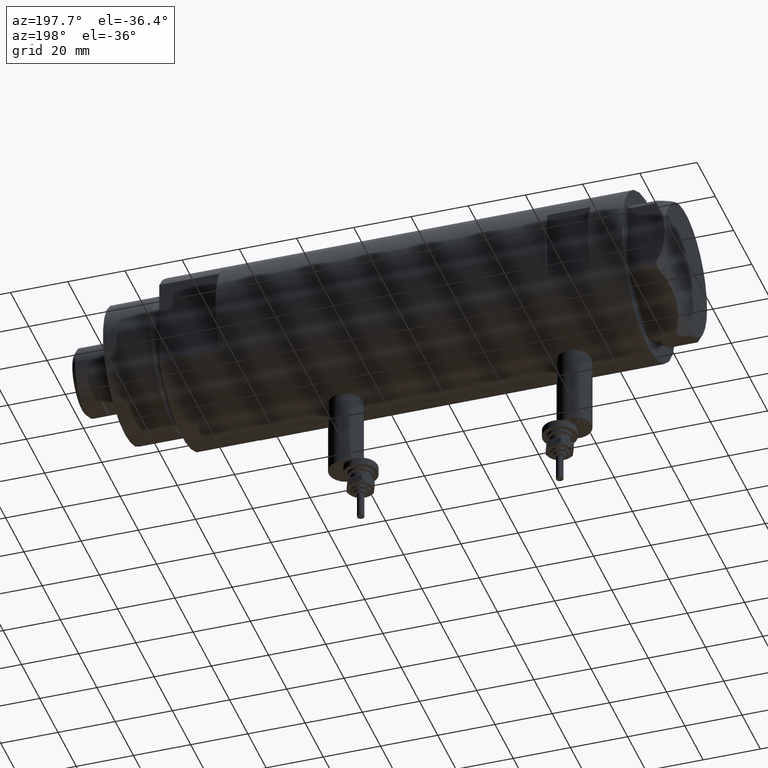
[diagram: clean part render]
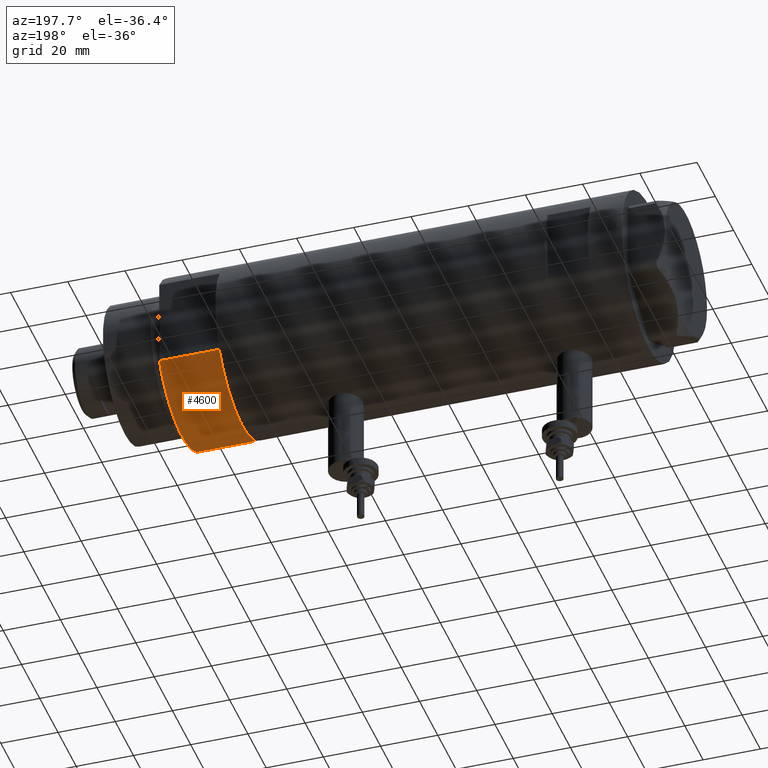
[diagram: same view with one face highlighted and labeled with its STEP entity id]
A machine part, auxiliary view. The second image highlights one B-rep face of the part: STEP entity #4600.
In plain terms, the highlighted cylindrical surface (partial cylindrical patch) has radius 29.5 mm, axis along (-1, -0, 0).
Its self-contained STEP definition (entity closure, byte-faithful):
#181 = VERTEX_POINT ( 'NONE', #2548 ) ;
#257 = FACE_OUTER_BOUND ( 'NONE', #3629, .T. ) ;
#272 = DIRECTION ( 'NONE',  ( 0.000000000000000000, 0.000000000000000000, 1.000000000000000000 ) ) ;
#664 = DIRECTION ( 'NONE',  ( 0.000000000000000000, 0.000000000000000000, 1.000000000000000000 ) ) ;
#689 = EDGE_CURVE ( 'NONE', #3703, #2813, #1892, .T. ) ;
#770 = VECTOR ( 'NONE', #1471, 1000.000000000000000 ) ;
#874 = EDGE_CURVE ( 'NONE', #5598, #181, #4890, .T. ) ;
#1239 = DIRECTION ( 'NONE',  ( 1.000000000000000000, 0.000000000000000000, 0.000000000000000000 ) ) ;
#1379 = ORIENTED_EDGE ( 'NONE', *, *, #1472, .F. ) ;
#1471 = DIRECTION ( 'NONE',  ( -0.000000000000000000, -0.000000000000000000, 1.000000000000000000 ) ) ;
#1472 = EDGE_CURVE ( 'NONE', #2813, #181, #3745, .T. ) ;
#1514 = ORIENTED_EDGE ( 'NONE', *, *, #4637, .T. ) ;
#1702 = CYLINDRICAL_SURFACE ( 'NONE', #4400, 29.50000000000000355 ) ;
#1724 = CARTESIAN_POINT ( 'NONE',  ( 0.000000000000000000, 0.000000000000000000, 21.00000000000000000 ) ) ;
#1816 = VECTOR ( 'NONE', #5315, 1000.000000000000000 ) ;
#1892 = LINE ( 'NONE', #5855, #770 ) ;
#1942 = CARTESIAN_POINT ( 'NONE',  ( 15.66045976336583045, -25.00000000000000000, 21.00000000000000355 ) ) ;
#2131 = CARTESIAN_POINT ( 'NONE',  ( 0.000000000000000000, 0.000000000000000000, 0.000000000000000000 ) ) ;
#2539 = DIRECTION ( 'NONE',  ( -0.000000000000000000, -0.000000000000000000, -1.000000000000000000 ) ) ;
#2548 = CARTESIAN_POINT ( 'NONE',  ( 15.66045976336583045, 24.99999999999999645, 20.99999999999999645 ) ) ;
#2813 = VERTEX_POINT ( 'NONE', #1942 ) ;
#3153 = AXIS2_PLACEMENT_3D ( 'NONE', #2131, #664, #4374 ) ;
#3282 = ORIENTED_EDGE ( 'NONE', *, *, #874, .T. ) ;
#3370 = CARTESIAN_POINT ( 'NONE',  ( 15.66045976336583401, 25.00000000000000000, 0.000000000000000000 ) ) ;
#3481 = ORIENTED_EDGE ( 'NONE', *, *, #689, .F. ) ;
#3486 = CARTESIAN_POINT ( 'NONE',  ( 0.000000000000000000, 0.000000000000000000, 21.00000000000000000 ) ) ;
#3629 = EDGE_LOOP ( 'NONE', ( #1379, #3481, #1514, #3282 ) ) ;
#3703 = VERTEX_POINT ( 'NONE', #4835 ) ;
#3725 = AXIS2_PLACEMENT_3D ( 'NONE', #1724, #272, #1239 ) ;
#3745 = CIRCLE ( 'NONE', #3725, 29.50000000000000355 ) ;
#4089 = CARTESIAN_POINT ( 'NONE',  ( 15.66045976336582690, 25.00000000000000000, 0.000000000000000000 ) ) ;
#4374 = DIRECTION ( 'NONE',  ( 1.000000000000000000, 0.000000000000000000, 0.000000000000000000 ) ) ;
#4400 = AXIS2_PLACEMENT_3D ( 'NONE', #3486, #2539, #4403 ) ;
#4403 = DIRECTION ( 'NONE',  ( -1.000000000000000000, 0.000000000000000000, 0.000000000000000000 ) ) ;
#4600 = ADVANCED_FACE ( 'NONE', ( #257 ), #1702, .T. ) ;
#4637 = EDGE_CURVE ( 'NONE', #3703, #5598, #5569, .T. ) ;
#4835 = CARTESIAN_POINT ( 'NONE',  ( 15.66045976336583401, -25.00000000000000000, 0.000000000000000000 ) ) ;
#4890 = LINE ( 'NONE', #3370, #1816 ) ;
#5315 = DIRECTION ( 'NONE',  ( -0.000000000000000000, -0.000000000000000000, 1.000000000000000000 ) ) ;
#5569 = CIRCLE ( 'NONE', #3153, 29.50000000000000355 ) ;
#5598 = VERTEX_POINT ( 'NONE', #4089 ) ;
#5855 = CARTESIAN_POINT ( 'NONE',  ( 15.66045976336583401, -25.00000000000000000, 0.000000000000000000 ) ) ;